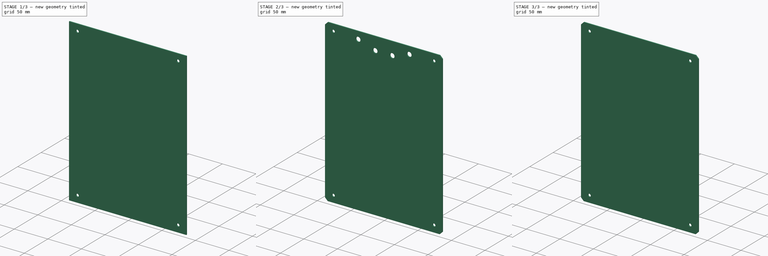
[diagram: build sequence overview — one tinted view per stage of 3, left to right]
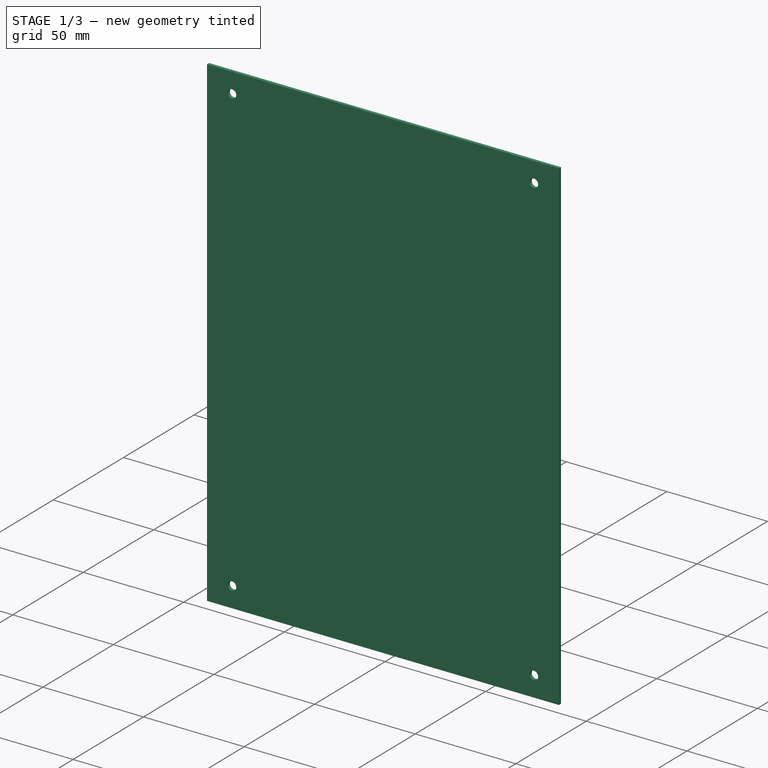
[diagram: stage 1 of 3 — iso view after this stage's code; geometry added in this stage tinted green]
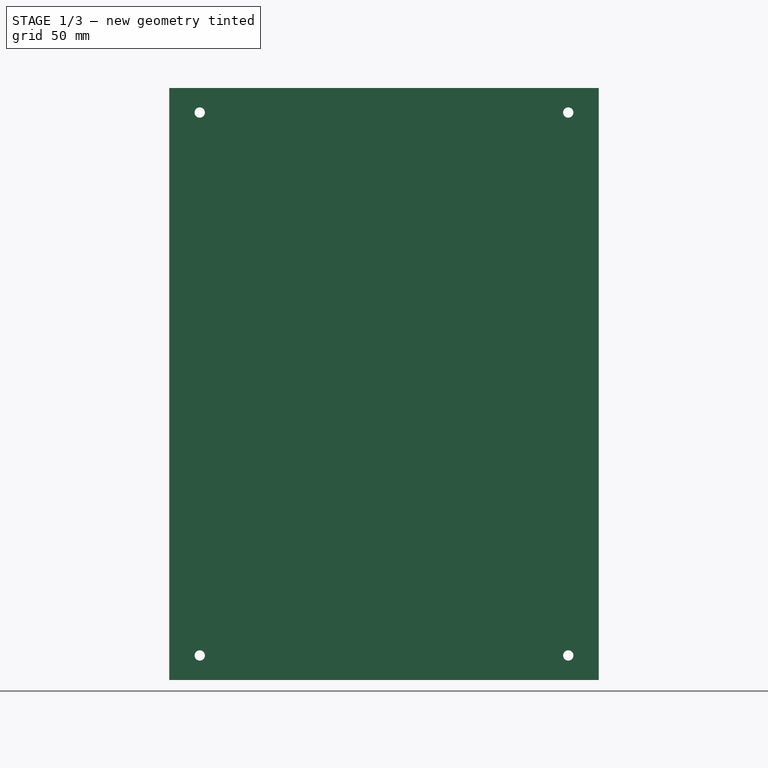
[diagram: stage 1 of 3 — front view after this stage's code; geometry added in this stage tinted green]
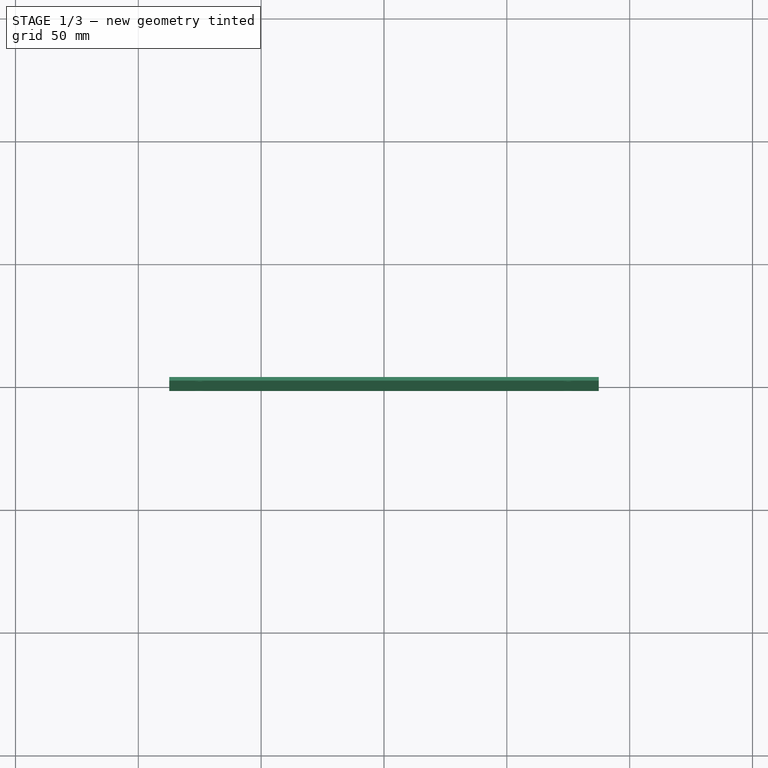
[diagram: stage 1 of 3 — top view after this stage's code; geometry added in this stage tinted green]
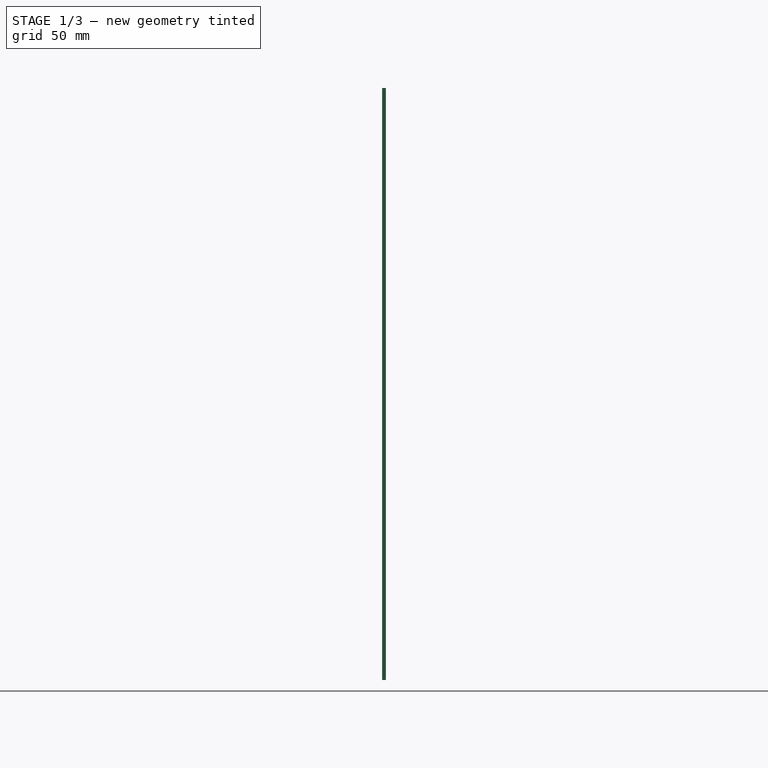
[diagram: stage 1 of 3 — right view after this stage's code; geometry added in this stage tinted green]
FCSTD DOCUMENT  (FreeCAD 1.0R39319 (Git))
Label: OCT-UFPNL
License: Creative Commons Attribution 4.0
LicenseURL: https://creativecommons.org/licenses/by/4.0/
objects: TechDraw::DrawViewDimension×32, Sketcher::SketchObject×4, PartDesign::Hole×3, PartDesign::Body×3, PartDesign::FeatureBase×2, TechDraw::DrawSVGTemplate×2, TechDraw::DrawProjGroupItem×2, TechDraw::DrawPage×2, PartDesign::Pad×1, PartDesign::Chamfer×1
note: 90 computed .brp shape members not serialized (recipe doc carries the construction recipe); baked Part::Feature solids carry a one-line shape summary decoded from their .brp

FEATURE [Sketcher::SketchObject] Sketch
  ArcFitTolerance = 1e-06
  AttachmentSupport = -> [XZ_Plane]
  FullyConstrained = true
  MakeInternals = false
  MapMode = 5
  Placement = pos=(0,0,0) rot=(1,0,0;1.5708rad)
  expr: Constraints[9] = 422 / (1 + sqrt(2))
  sketch-geometry (4):
    g0: LineSegment StartX=-87.3991 StartY=0 StartZ=0 EndX=87.3991 EndY=0 EndZ=0
    g1: LineSegment StartX=87.3991 StartY=0 StartZ=0 EndX=87.3991 EndY=241 EndZ=0
    g2: LineSegment StartX=87.3991 StartY=241 StartZ=0 EndX=-87.3991 EndY=241 EndZ=0
    g3: LineSegment StartX=-87.3991 StartY=241 StartZ=0 EndX=-87.3991 EndY=0 EndZ=0
  constraints (11):
    c: Coincident(g0,g1)
    c: Coincident(g1,g2)
    c: Coincident(g2,g3)
    c: Coincident(g3,g0)
    c: Horizontal(g2)
    c: Vertical(g1)
    c: Vertical(g3)
    c: PointOnObject(g0,g-1)
    c: DistanceY(g3,g3) = 241
    c: DistanceX(g0,g0) = 174.798
    c: Symmetric(g0,g0,g-2)
FEATURE [PartDesign::Pad] Pad
  Direction = (0,-1,2e-16)
  Length = 1.5
  Length2 = 10
  Placement = pos=(0,0,0) rot=(1,0,0;1.5708rad)
  Profile = -> Sketch
  ReferenceAxis = -> Sketch [N_Axis]
  Suppressed = false
  Type = 0
FEATURE [Sketcher::SketchObject] Sketch001
  ArcFitTolerance = 1e-06
  AttachmentSupport = -> [Pad]
  ExternalGeometry = -> [Pad]
  FullyConstrained = true
  MakeInternals = false
  MapMode = 5
  Placement = pos=(0,-1.5,0) rot=(1,0,0;1.5708rad)
  sketch-geometry (6):
    g0: Circle CenterX=-75 CenterY=231 CenterZ=0 NormalX=0 NormalY=0 NormalZ=1 AngleXU=0 Radius=2
    g1: Circle CenterX=75 CenterY=231 CenterZ=0 NormalX=0 NormalY=0 NormalZ=1 AngleXU=0 Radius=2
    g2: Circle CenterX=-75 CenterY=10 CenterZ=0 NormalX=0 NormalY=0 NormalZ=1 AngleXU=0 Radius=2
    g3: Circle CenterX=75 CenterY=10 CenterZ=0 NormalX=0 NormalY=0 NormalZ=1 AngleXU=0 Radius=2
    g4: LineSegment [constr] StartX=-75 StartY=10 StartZ=0 EndX=75 EndY=10 EndZ=0
    g5: LineSegment [constr] StartX=-75 StartY=231 StartZ=0 EndX=75 EndY=231 EndZ=0
  constraints (14):
    c: Coincident(g4,g2)
    c: Coincident(g4,g3)
    c: DistanceY(g-1,g2) = 10
    c: DistanceX(g4,g4) = 150
    c: Equal(g2,g3)
    c: Diameter(g2) = 4
    c: Symmetric(g2,g3,g-2)
    c: Coincident(g5,g0)
    c: Coincident(g5,g1)
    c: DistanceX(g5,g5) = 150
    c: Equal(g0,g1)
    c: Diameter(g0) = 4
    c: Symmetric(g0,g1,g-2)
    c: DistanceY(g1,g-3) = 10
FEATURE [PartDesign::Hole] Hole
  BaseFeature = -> Pad
  CustomThreadClearance = 0
  Depth = 601.402
  DepthType = 1
  Diameter = 4.2
  DrillForDepth = false
  DrillPoint = 1
  DrillPointAngle = 118
  HoleCutCountersinkAngle = 90
  HoleCutCustomValues = false
  HoleCutDepth = 0
  HoleCutDiameter = 6.1
  HoleCutType = 0
  ModelThread = false
  Placement = pos=(0,0,0) rot=(1,0,0;1.5708rad)
  Profile = -> Sketch001
  Suppressed = false
  Tapered = false
  TaperedAngle = 90
  ThreadClass = 0
  ThreadDepth = 601.402
  ThreadDepthType = 0
  ThreadDirection = 0
  ThreadFit = 0
  ThreadSize = 0
  ThreadType = 0
  Threaded = false
  UseCustomThreadClearance = false
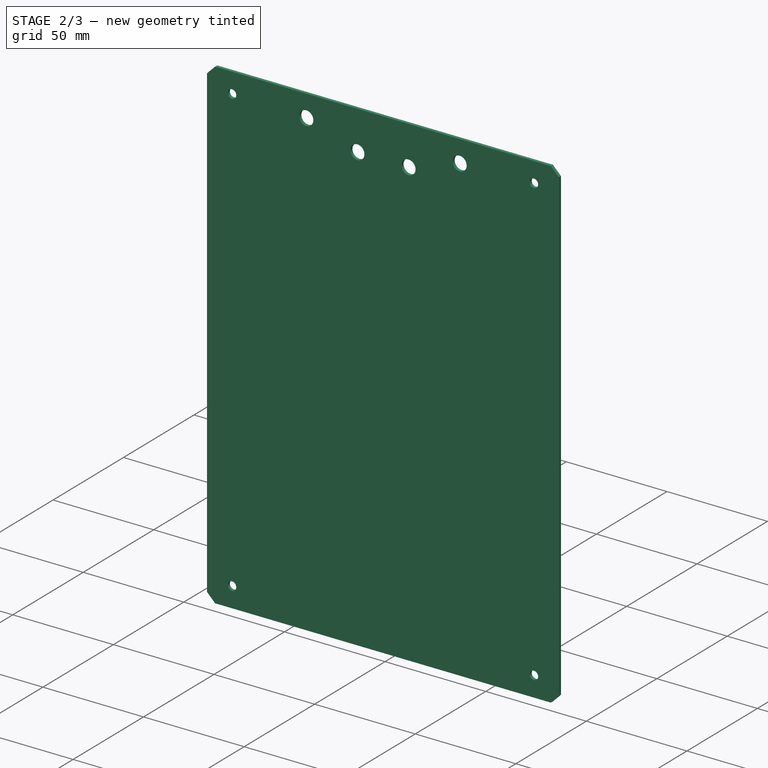
[diagram: stage 2 of 3 — iso view after this stage's code; geometry added in this stage tinted green]
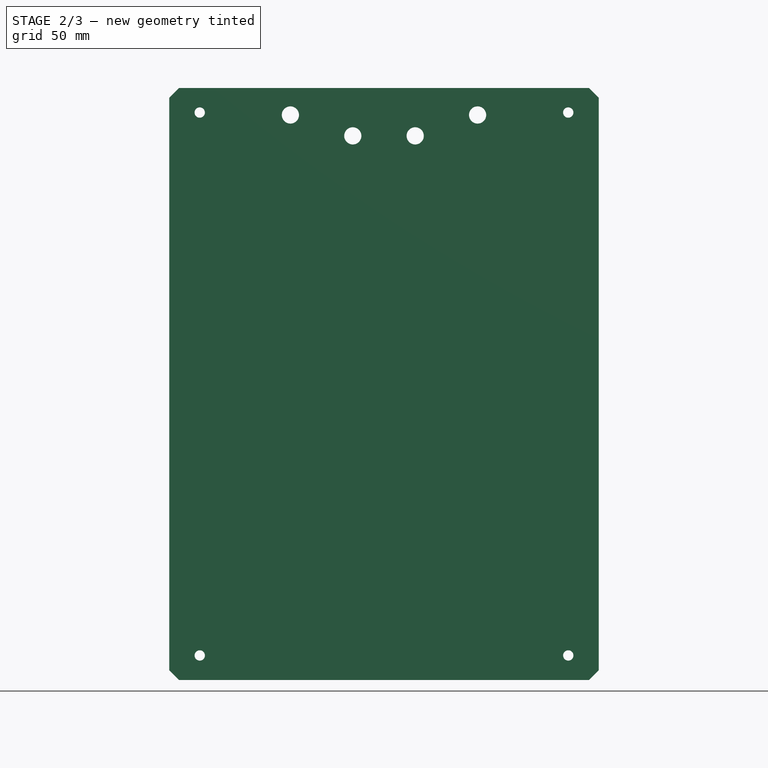
[diagram: stage 2 of 3 — front view after this stage's code; geometry added in this stage tinted green]
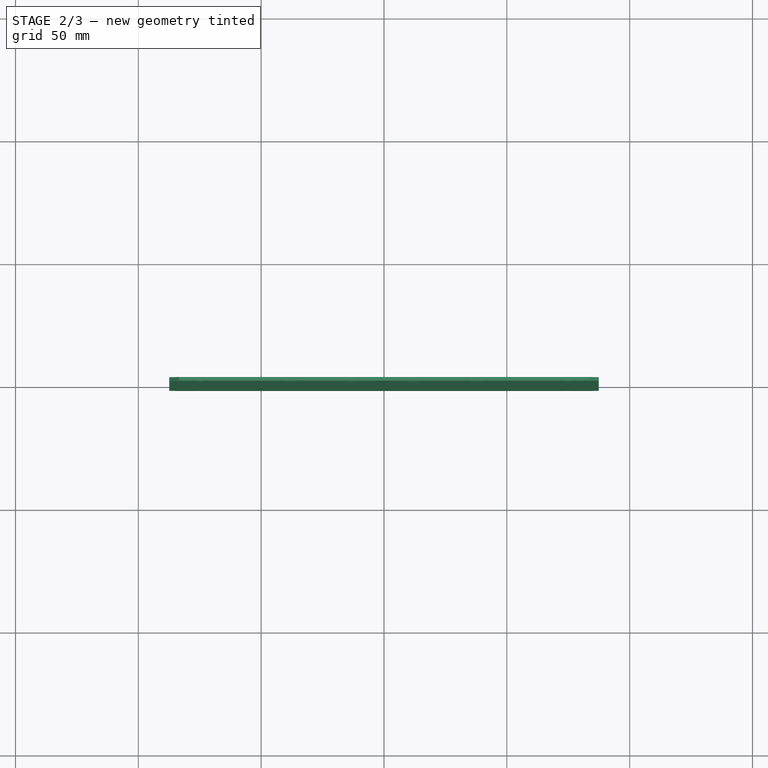
[diagram: stage 2 of 3 — top view after this stage's code; geometry added in this stage tinted green]
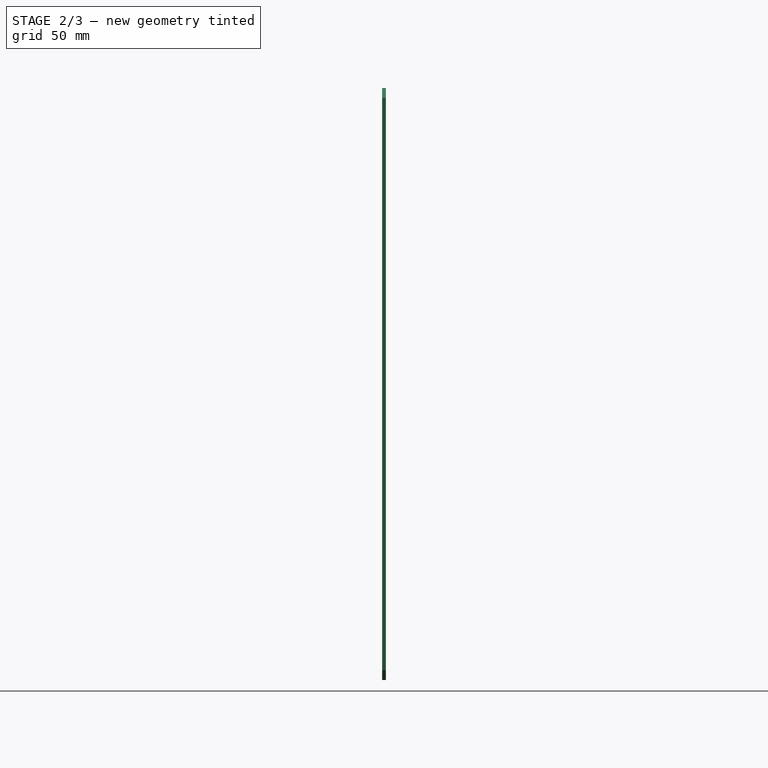
[diagram: stage 2 of 3 — right view after this stage's code; geometry added in this stage tinted green]
FEATURE [PartDesign::Chamfer] Chamfer
  Angle = 45
  Base = -> Hole [Edge2,Edge1,Edge5,Edge8]
  BaseFeature = -> Hole
  ChamferType = 0
  FlipDirection = false
  Placement = pos=(0,0,0) rot=(1,0,0;1.5708rad)
  Size = 4
  Size2 = 1
  SupportTransform = false
  Suppressed = false
  UseAllEdges = false
FEATURE [PartDesign::Body] Body  label="OCT-UFPNL-AB"
  AllowCompound = false
  Group = -> [Sketch,Pad,Sketch001,Hole,Chamfer]
  Origin = -> Origin
  Tip = -> Chamfer
FEATURE [PartDesign::FeatureBase] Clone
  BaseFeature = -> Body
  Suppressed = false
FEATURE [Sketcher::SketchObject] Sketch002
  ArcFitTolerance = 1e-06
  AttachmentSupport = -> [Clone]
  ExternalGeometry = -> [Clone]
  FullyConstrained = true
  MakeInternals = false
  MapMode = 5
  Placement = pos=(0,-1.5,0) rot=(1,0,0;1.5708rad)
  sketch-geometry (8):
    g0: Circle CenterX=-38.1 CenterY=230 CenterZ=0 NormalX=0 NormalY=0 NormalZ=1 AngleXU=0 Radius=3.5
    g1: Circle CenterX=-12.7 CenterY=221.5 CenterZ=0 NormalX=0 NormalY=0 NormalZ=1 AngleXU=0 Radius=3.5
    g2: Circle CenterX=12.7 CenterY=221.5 CenterZ=0 NormalX=0 NormalY=0 NormalZ=1 AngleXU=0 Radius=3.5
    g3: Circle CenterX=38.1 CenterY=230 CenterZ=0 NormalX=0 NormalY=0 NormalZ=1 AngleXU=0 Radius=3.5
    g4: LineSegment [constr] StartX=-38.1 StartY=230 StartZ=0 EndX=38.1 EndY=230 EndZ=0
    g5: LineSegment [constr] StartX=38.1 StartY=230 StartZ=0 EndX=12.7 EndY=221.5 EndZ=0
    g6: LineSegment [constr] StartX=12.7 StartY=221.5 StartZ=0 EndX=-12.7 EndY=221.5 EndZ=0
    g7: LineSegment [constr] StartX=-12.7 StartY=221.5 StartZ=0 EndX=-38.1 EndY=230 EndZ=0
  constraints (19):
    c: Equal(g0,g1)
    c: Equal(g1,g2)
    c: Equal(g2,g3)
    c: Coincident(g4,g0)
    c: Coincident(g4,g3)
    c: Coincident(g4,g5)
    c: Coincident(g5,g2)
    c: Coincident(g5,g6)
    c: Coincident(g6,g1)
    c: Coincident(g6,g7)
    c: Coincident(g7,g4)
    c: Horizontal(g6)
    c: Equal(g7,g5)
    c: Symmetric(g3,g0,g-2)
    c: DistanceX(g6,g6) = 25.4
    c: DistanceY(g2,g-3) = 19.5
    c: DistanceY(g7,g7) = 8.5
    c: DistanceX(g4,g4) = 76.2
    c: Diameter(g0) = 7
FEATURE [PartDesign::Hole] Hole001
  BaseFeature = -> Clone
  CustomThreadClearance = 0
  Depth = 25
  DepthType = 0
  Diameter = 7
  DrillForDepth = false
  DrillPoint = 1
  DrillPointAngle = 118
  HoleCutCountersinkAngle = 90
  HoleCutCustomValues = false
  HoleCutDepth = 0
  HoleCutDiameter = 0
  HoleCutType = 0
  ModelThread = false
  Profile = -> Sketch002
  Suppressed = false
  Tapered = false
  TaperedAngle = 90
  ThreadClass = 0
  ThreadDepth = 25
  ThreadDepthType = 0
  ThreadDirection = 0
  ThreadFit = 2
  ThreadSize = 14
  ThreadType = 1
  Threaded = false
  UseCustomThreadClearance = false
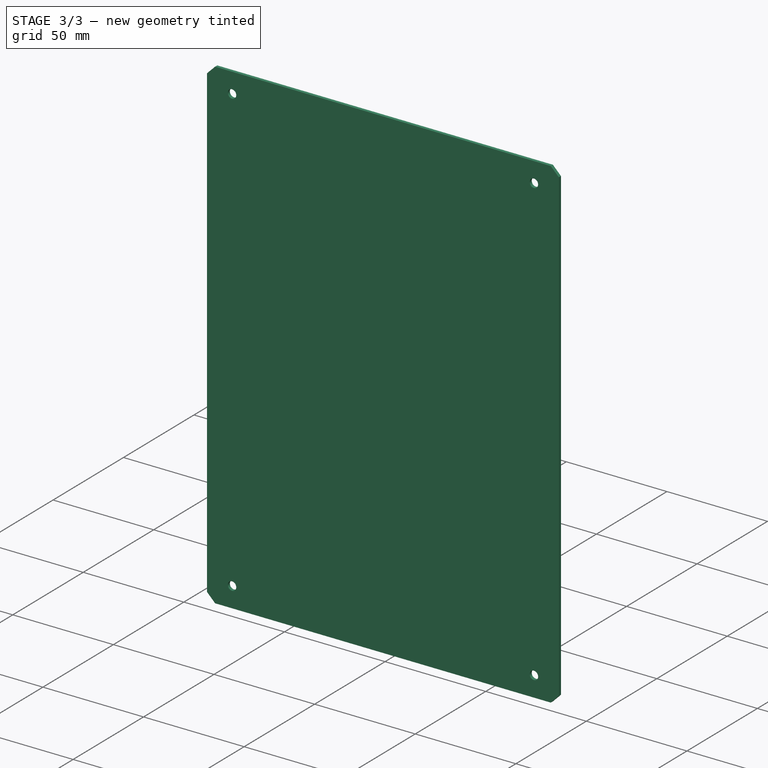
[diagram: stage 3 of 3 — iso view after this stage's code; geometry added in this stage tinted green]
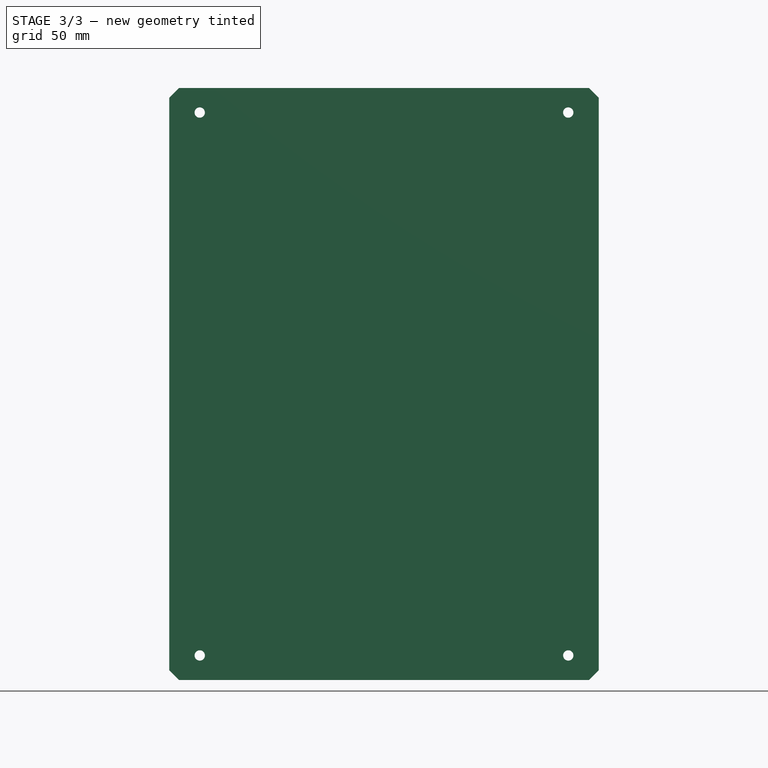
[diagram: stage 3 of 3 — front view after this stage's code; geometry added in this stage tinted green]
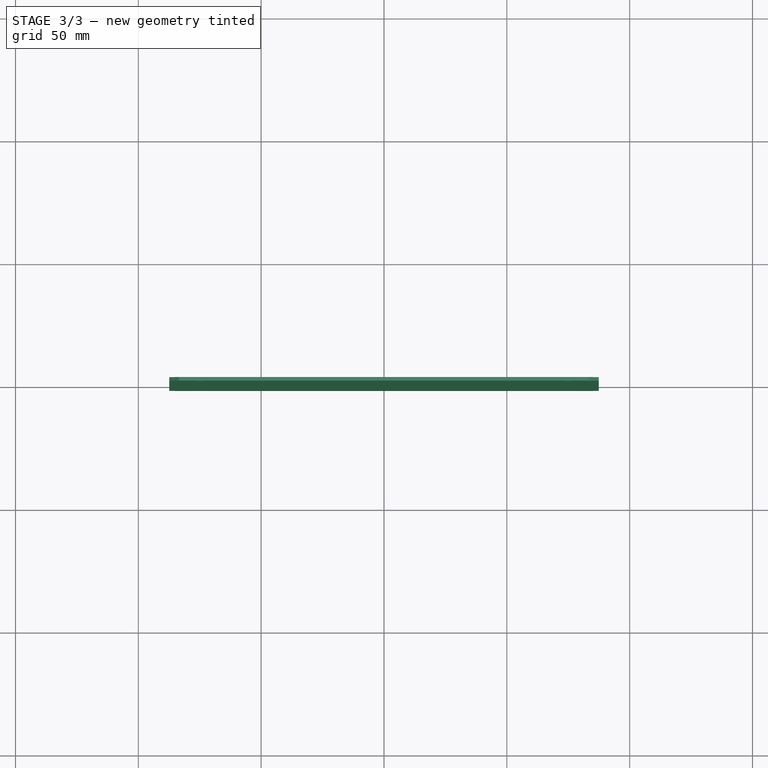
[diagram: stage 3 of 3 — top view after this stage's code; geometry added in this stage tinted green]
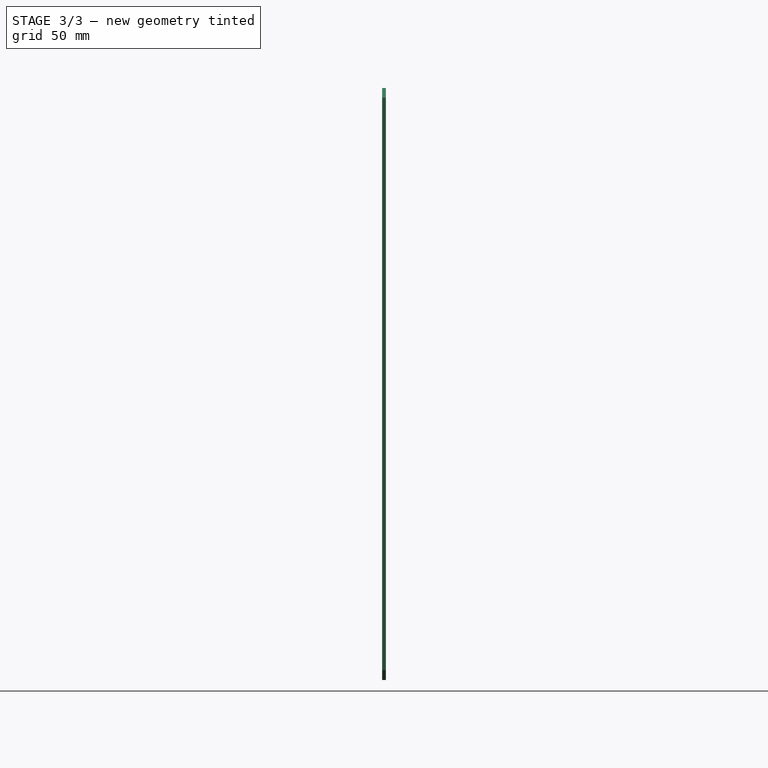
[diagram: stage 3 of 3 — right view after this stage's code; geometry added in this stage tinted green]
FEATURE [PartDesign::Body] Body001  label="OCT-UFPNL-BB"
  AllowCompound = false
  Group = -> [Clone,Sketch002,Hole001]
  Origin = -> Origin001
  Tip = -> Hole001
FEATURE [PartDesign::FeatureBase] Clone001
  BaseFeature = -> Body
  Suppressed = false
FEATURE [Sketcher::SketchObject] Sketch003
  ArcFitTolerance = 1e-06
  AttachmentSupport = -> [Clone001]
  FullyConstrained = true
  MakeInternals = false
  MapMode = 5
  Placement = pos=(0,-1.5,0) rot=(1,0,0;1.5708rad)
  sketch-geometry (6):
    g0: Circle CenterX=-41.3 CenterY=156.5 CenterZ=0 NormalX=0 NormalY=0 NormalZ=1 AngleXU=0 Radius=2.55
    g1: Circle CenterX=41.3 CenterY=156.5 CenterZ=0 NormalX=0 NormalY=0 NormalZ=1 AngleXU=0 Radius=2.55
    g2: Circle CenterX=-28.55 CenterY=120 CenterZ=0 NormalX=0 NormalY=0 NormalZ=1 AngleXU=0 Radius=2.55
    g3: Circle CenterX=28.55 CenterY=120 CenterZ=0 NormalX=0 NormalY=0 NormalZ=1 AngleXU=0 Radius=2.55
    g4: LineSegment [constr] StartX=-41.3 StartY=156.5 StartZ=0 EndX=41.3 EndY=156.5 EndZ=0
    g5: LineSegment [constr] StartX=-28.55 StartY=120 StartZ=0 EndX=28.55 EndY=120 EndZ=0
  constraints (14):
    c: Coincident(g4,g0)
    c: Coincident(g4,g1)
    c: Coincident(g5,g2)
    c: Coincident(g5,g3)
    c: Equal(g1,g3)
    c: Diameter(g3) = 5.1
    c: DistanceX(g5,g5) = 57.1
    c: DistanceY(g3,g1) = 36.5
    c: DistanceX(g4,g4) = 82.6
    c: Symmetric(g0,g1,g-2)
    c: Symmetric(g2,g3,g-2)
    c: Equal(g3,g2)
    c: Equal(g2,g0)
    c: DistanceY(g-1,g3) = 120
FEATURE [PartDesign::Hole] Hole002
  BaseFeature = -> Clone001
  CustomThreadClearance = 0
  Depth = 601.396
  DepthType = 1
  Diameter = 5.1
  DrillForDepth = false
  DrillPoint = 1
  DrillPointAngle = 118
  HoleCutCountersinkAngle = 90
  HoleCutCustomValues = false
  HoleCutDepth = 0
  HoleCutDiameter = 6.1
  HoleCutType = 0
  ModelThread = false
  Profile = -> Sketch003
  Suppressed = false
  Tapered = false
  TaperedAngle = 90
  ThreadClass = 0
  ThreadDepth = 601.396
  ThreadDepthType = 0
  ThreadDirection = 0
  ThreadFit = 0
  ThreadSize = 0
  ThreadType = 0
  Threaded = false
  UseCustomThreadClearance = false
FEATURE [PartDesign::Body] Body002  label="OCT-UFPNL-CB"
  AllowCompound = false
  Group = -> [Clone001,Sketch003,Hole002]
  Origin = -> Origin002
  Tip = -> Hole002
FEATURE [TechDraw::DrawSVGTemplate] Template
  EditableTexts = approval_person=S. Aphelion; creator=Michael Stoll; date_of_issue=13/02/2026; document_status=In preparation; document_type=Component Drawing; drawing_number=DN; general_tolerances=ISO 2768-m; language_code=EN; part_material=Mild Steel, S275; responsible_department=RD; revision_index=A; scale=1 : 1.25; sheet_number=1 / 1; supplementary_title_1=Upper Frame Panel, Hinge; title=OCT-UFPNL-BB
  Height = 297
  Orientation = 1
  Template = C:/Program Files/FreeCAD 1.0/data/Mod/TechDraw/Templates/A3_Landscape_ISO5457_advanced.svg
  Width = 420
FEATURE [TechDraw::DrawProjGroupItem] View
  CoarseView = false
  Direction = (0,-1,0)
  Focus = 100
  HardHidden = false
  IsoCount = 0
  IsoHidden = false
  IsoVisible = false
  LockPosition = false
  Perspective = false
  Rotation = 0
  RotationVector = (1,0,0)
  Scale = 0.8
  ScaleType = 0
  ScrubCount = 1
  SeamHidden = false
  SeamVisible = false
  SmoothHidden = false
  SmoothVisible = true
  Source = -> [Body001]
  Type = 0
  X = 113.341
  XDirection = (1,0,0)
  Y = 150.735
FEATURE [TechDraw::DrawViewDimension] Dimension
  AngleOverride = false
  Arbitrary = false
  ArbitraryTolerances = false
  BoxCorners = (2) [(-69.9192,-96.4,0),(69.9192,96.4,0)]
  EqualTolerance = true
  ExtensionAngle = 0
  FormatSpec = %.1f
  FormatSpecOverTolerance = %+.1f
  FormatSpecUnderTolerance = %+.1f
  Inverted = false
  LineAngle = 0
  LockPosition = false
  MeasureType = 1
  OverTolerance = 0
  References2D = -> [View]
  Rotation = 0
  Scale = 0.8
  ScaleType = 0
  TheoreticalExact = false
  Type = 1
  UnderTolerance = 0
  X = 0
  Y = -124.151
FEATURE [TechDraw::DrawViewDimension] Dimension001
  AngleOverride = false
  Arbitrary = false
  ArbitraryTolerances = false
  BoxCorners = (2) [(-69.9192,-96.4,0),(69.9192,96.4,0)]
  EqualTolerance = true
  ExtensionAngle = 0
  FormatSpec = %.1f
  FormatSpecOverTolerance = %+.1f
  FormatSpecUnderTolerance = %+.1f
  Inverted = false
  LineAngle = 0
  LockPosition = false
  MeasureType = 1
  OverTolerance = 0
  References2D = -> [View]
  Rotation = 0
  Scale = 0.8
  ScaleType = 0
  TheoreticalExact = false
  Type = 2
  UnderTolerance = 0
  X = 92.0289
  Y = 0
FEATURE [TechDraw::DrawViewDimension] Dimension003
  AngleOverride = false
  Arbitrary = false
  ArbitraryTolerances = false
  BoxCorners = (2) [(-69.9192,-96.4,0),(69.9192,96.4,0)]
  EqualTolerance = true
  ExtensionAngle = 0
  FormatSpec = %.1f
  FormatSpecOverTolerance = %+.1f
  FormatSpecUnderTolerance = %+.1f
  Inverted = false
  LineAngle = 0
  LockPosition = false
  MeasureType = 1
  OverTolerance = 0
  References2D = -> [View]
  Rotation = 0
  Scale = 0.8
  ScaleType = 0
  TheoreticalExact = false
  Type = 1
  UnderTolerance = 0
  X = 0
  Y = -110.696
FEATURE [TechDraw::DrawViewDimension] Dimension005
  AngleOverride = false
  Arbitrary = false
  ArbitraryTolerances = false
  BoxCorners = (2) [(-69.9192,-96.4,0),(69.9192,96.4,0)]
  EqualTolerance = true
  ExtensionAngle = 0
  FormatSpec = %.1f
  FormatSpecOverTolerance = %+.1f
  FormatSpecUnderTolerance = %+.1f
  Inverted = false
  LineAngle = 0
  LockPosition = false
  MeasureType = 1
  OverTolerance = 0
  References2D = -> [View]
  Rotation = 0
  Scale = 0.8
  ScaleType = 0
  TheoreticalExact = false
  Type = 1
  UnderTolerance = 0
  X = 0
  Y = 124.736
FEATURE [TechDraw::DrawViewDimension] Dimension006
  AngleOverride = false
  Arbitrary = false
  ArbitraryTolerances = false
  BoxCorners = (2) [(-69.9192,-96.4,0),(69.9192,96.4,0)]
  EqualTolerance = true
  ExtensionAngle = 0
  FormatSpec = %.1f
  FormatSpecOverTolerance = %+.1f
  FormatSpecUnderTolerance = %+.1f
  Inverted = false
  LineAngle = 0
  LockPosition = false
  MeasureType = 1
  OverTolerance = 0
  References2D = -> [View]
  Rotation = 0
  Scale = 0.8
  ScaleType = 0
  TheoreticalExact = false
  Type = 0
  UnderTolerance = 0
  X = -64.9596
  Y = 124.736
FEATURE [TechDraw::DrawViewDimension] Dimension007
  AngleOverride = false
  Arbitrary = false
  ArbitraryTolerances = false
  BoxCorners = (2) [(-69.9192,-96.4,0),(69.9192,96.4,0)]
  EqualTolerance = true
  ExtensionAngle = 0
  FormatSpec = %.1f
  FormatSpecOverTolerance = %+.1f
  FormatSpecUnderTolerance = %+.1f
  Inverted = false
  LineAngle = 0
  LockPosition = false
  MeasureType = 1
  OverTolerance = 0
  References2D = -> [View]
  Rotation = 0
  Scale = 0.8
  ScaleType = 0
  TheoreticalExact = false
  Type = 0
  UnderTolerance = 0
  X = -64.9596
  Y = -110.696
FEATURE [TechDraw::DrawViewDimension] Dimension010
  AngleOverride = false
  Arbitrary = false
  ArbitraryTolerances = false
  BoxCorners = (2) [(-69.9192,-96.4,0),(69.9192,96.4,0)]
  EqualTolerance = true
  ExtensionAngle = 0
  FormatSpec = %.1f
  FormatSpecOverTolerance = %+.1f
  FormatSpecUnderTolerance = %+.1f
  Inverted = false
  LineAngle = 0
  LockPosition = false
  MeasureType = 1
  OverTolerance = 0
  References2D = -> [View]
  Rotation = 0
  Scale = 0.8
  ScaleType = 0
  TheoreticalExact = false
  Type = 2
  UnderTolerance = 0
  X = 77.1345
  Y = 0
FEATURE [TechDraw::DrawViewDimension] Dimension013
  AngleOverride = false
  Arbitrary = false
  ArbitraryTolerances = false
  BoxCorners = (2) [(-69.9192,-96.4,0),(69.9192,96.4,0)]
  EqualTolerance = true
  ExtensionAngle = 0
  FormatSpec = %.1f
  FormatSpecOverTolerance = %+.1f
  FormatSpecUnderTolerance = %+.1f
  Inverted = false
  LineAngle = 0
  LockPosition = false
  MeasureType = 1
  OverTolerance = 0
  References2D = -> [View]
  Rotation = 0
  Scale = 0.8
  ScaleType = 0
  TheoreticalExact = false
  Type = 1
  UnderTolerance = 0
  X = 0
  Y = 110.945
FEATURE [TechDraw::DrawViewDimension] Dimension014
  AngleOverride = false
  Arbitrary = false
  ArbitraryTolerances = false
  BoxCorners = (2) [(-69.9192,-96.4,0),(69.9192,96.4,0)]
  EqualTolerance = true
  ExtensionAngle = 0
  FormatSpec = %.1f
  FormatSpecOverTolerance = %+.1f
  FormatSpecUnderTolerance = %+.1f
  Inverted = false
  LineAngle = 0
  LockPosition = false
  MeasureType = 1
  OverTolerance = 0
  References2D = -> [View]
  Rotation = 0
  Scale = 0.8
  ScaleType = 0
  TheoreticalExact = false
  Type = 2
  UnderTolerance = 0
  X = -89.172
  Y = 84.2
FEATURE [TechDraw::DrawViewDimension] Dimension015
  AngleOverride = false
  Arbitrary = false
  ArbitraryTolerances = false
  BoxCorners = (2) [(-69.9192,-96.4,0),(69.9192,96.4,0)]
  EqualTolerance = true
  ExtensionAngle = 0
  FormatSpec = %.1f
  FormatSpecOverTolerance = %+.1f
  FormatSpecUnderTolerance = %+.1f
  Inverted = false
  LineAngle = 0
  LockPosition = false
  MeasureType = 1
  OverTolerance = 0
  References2D = -> [View]
  Rotation = 0
  Scale = 0.8
  ScaleType = 0
  TheoreticalExact = false
  Type = 1
  UnderTolerance = 0
  X = -45.24
  Y = 110.945
FEATURE [TechDraw::DrawViewDimension] Dimension016
  AngleOverride = false
  Arbitrary = false
  ArbitraryTolerances = false
  BoxCorners = (2) [(-69.9192,-96.4,0),(69.9192,96.4,0)]
  EqualTolerance = true
  ExtensionAngle = 0
  FormatSpec = %.1f
  FormatSpecOverTolerance = %+.1f
  FormatSpecUnderTolerance = %+.1f
  Inverted = false
  LineAngle = 0
  LockPosition = false
  MeasureType = 1
  OverTolerance = 0
  References2D = -> [View]
  Rotation = 0
  Scale = 0.8
  ScaleType = 0
  TheoreticalExact = false
  Type = 0
  UnderTolerance = 0
  X = 123.017
  Y = 112.248
FEATURE [TechDraw::DrawViewDimension] Dimension017
  AngleOverride = false
  Arbitrary = false
  ArbitraryTolerances = false
  BoxCorners = (2) [(-69.9192,-96.4,0),(69.9192,96.4,0)]
  EqualTolerance = true
  ExtensionAngle = 0
  FormatSpec = %.1f
  FormatSpecOverTolerance = %+.1f
  FormatSpecUnderTolerance = %+.1f
  Inverted = false
  LineAngle = 0
  LockPosition = false
  MeasureType = 1
  OverTolerance = 0
  References2D = -> [View]
  Rotation = 0
  Scale = 0.8
  ScaleType = 0
  TheoreticalExact = false
  Type = 0
  UnderTolerance = 0
  X = -89.172
  Y = -92.4
FEATURE [TechDraw::DrawViewDimension] Dimension018
  AngleOverride = false
  Arbitrary = false
  ArbitraryTolerances = false
  BoxCorners = (2) [(-69.9192,-96.4,0),(69.9192,96.4,0)]
  EqualTolerance = true
  ExtensionAngle = 0
  FormatSpec = %.1f
  FormatSpecOverTolerance = %+.1f
  FormatSpecUnderTolerance = %+.1f
  Inverted = false
  LineAngle = 0
  LockPosition = false
  MeasureType = 1
  OverTolerance = 0
  References2D = -> [View]
  Rotation = 0
  Scale = 0.8
  ScaleType = 0
  TheoreticalExact = false
  Type = 1
  UnderTolerance = 0
  X = -20.32
  Y = 110.945
FEATURE [TechDraw::DrawViewDimension] Dimension019
  AngleOverride = false
  Arbitrary = false
  ArbitraryTolerances = false
  BoxCorners = (2) [(-69.9192,-96.4,0),(69.9192,96.4,0)]
  EqualTolerance = true
  ExtensionAngle = 0
  FormatSpec = %.1f
  FormatSpecOverTolerance = %+.1f
  FormatSpecUnderTolerance = %+.1f
  Inverted = false
  LineAngle = 0
  LockPosition = false
  MeasureType = 1
  OverTolerance = 0
  References2D = -> [View]
  Rotation = 0
  Scale = 0.8
  ScaleType = 0
  TheoreticalExact = false
  Type = 1
  UnderTolerance = 0
  X = 20.32
  Y = 110.945
FEATURE [TechDraw::DrawViewDimension] Dimension020
  AngleOverride = false
  Arbitrary = false
  ArbitraryTolerances = false
  BoxCorners = (2) [(-69.9192,-96.4,0),(69.9192,96.4,0)]
  EqualTolerance = true
  ExtensionAngle = 0
  FormatSpec = %.1f x45°
  FormatSpecOverTolerance = %+.1f
  FormatSpecUnderTolerance = %+.1f
  Inverted = false
  LineAngle = 0
  LockPosition = false
  MeasureType = 1
  OverTolerance = 0
  References2D = -> [View]
  Rotation = 0
  Scale = 0.8
  ScaleType = 0
  TheoreticalExact = false
  Type = 1
  UnderTolerance = 0
  X = 68.3192
  Y = 131.736
FEATURE [TechDraw::DrawSVGTemplate] Template001
  EditableTexts = approval_person=S. Aphelion; creator=Michael Stoll; date_of_issue=13/02/2026; document_status=In preparation; document_type=Component Drawing; drawing_number=DN; general_tolerances=ISO 2768-m; language_code=EN; part_material=Mild Steel, S275; responsible_department=RD; revision_index=A; scale=1 : 1.25; sheet_number=2 / 2; supplementary_title_1=Upper Panel, Handle; title=OCT-UFPNL-CB
  Height = 297
  Orientation = 1
  Template = C:/Program Files/FreeCAD 1.0/data/Mod/TechDraw/Templates/A3_Landscape_ISO5457_advanced.svg
  Width = 420
FEATURE [TechDraw::DrawProjGroupItem] View001
  CoarseView = false
  Direction = (0,-1,0)
  Focus = 100
  HardHidden = false
  IsoCount = 0
  IsoHidden = false
  IsoVisible = false
  LockPosition = false
  Perspective = false
  Rotation = 0
  RotationVector = (1,0,0)
  Scale = 0.8
  ScaleType = 0
  ScrubCount = 1
  SeamHidden = false
  SeamVisible = false
  SmoothHidden = false
  SmoothVisible = true
  Source = -> [Hole002]
  Type = 0
  X = 115.305
  XDirection = (1,0,0)
  Y = 151.643
FEATURE [TechDraw::DrawViewDimension] Dimension021
  AngleOverride = false
  Arbitrary = false
  ArbitraryTolerances = false
  BoxCorners = (2) [(-69.9192,-96.4,0),(69.9192,96.4,0)]
  EqualTolerance = true
  ExtensionAngle = 0
  FormatSpec = %.1f
  FormatSpecOverTolerance = %+.1f
  FormatSpecUnderTolerance = %+.1f
  Inverted = false
  LineAngle = 0
  LockPosition = false
  MeasureType = 1
  OverTolerance = 0
  References2D = -> [View001]
  Rotation = 0
  Scale = 0.8
  ScaleType = 0
  TheoreticalExact = false
  Type = 1
  UnderTolerance = 0
  X = 0
  Y = -116.473
FEATURE [TechDraw::DrawViewDimension] Dimension022
  AngleOverride = false
  Arbitrary = false
  ArbitraryTolerances = false
  BoxCorners = (2) [(-69.9192,-96.4,0),(69.9192,96.4,0)]
  EqualTolerance = true
  ExtensionAngle = 0
  FormatSpec = %.1f
  FormatSpecOverTolerance = %+.1f
  FormatSpecUnderTolerance = %+.1f
  Inverted = false
  LineAngle = 0
  LockPosition = false
  MeasureType = 1
  OverTolerance = 0
  References2D = -> [View001]
  Rotation = 0
  Scale = 0.8
  ScaleType = 0
  TheoreticalExact = false
  Type = 1
  UnderTolerance = 0
  X = 0
  Y = -105.802
FEATURE [TechDraw::DrawViewDimension] Dimension023
  AngleOverride = false
  Arbitrary = false
  ArbitraryTolerances = false
  BoxCorners = (2) [(-69.9192,-96.4,0),(69.9192,96.4,0)]
  EqualTolerance = true
  ExtensionAngle = 0
  FormatSpec = %.1f
  FormatSpecOverTolerance = %+.1f
  FormatSpecUnderTolerance = %+.1f
  Inverted = false
  LineAngle = 0
  LockPosition = false
  MeasureType = 1
  OverTolerance = 0
  References2D = -> [View001]
  Rotation = 0
  Scale = 0.8
  ScaleType = 0
  TheoreticalExact = false
  Type = 1
  UnderTolerance = 0
  X = -64.9596
  Y = -105.802
FEATURE [TechDraw::DrawViewDimension] Dimension024
  AngleOverride = false
  Arbitrary = false
  ArbitraryTolerances = false
  BoxCorners = (2) [(-69.9192,-96.4,0),(69.9192,96.4,0)]
  EqualTolerance = true
  ExtensionAngle = 0
  FormatSpec = %.1f
  FormatSpecOverTolerance = %+.1f
  FormatSpecUnderTolerance = %+.1f
  Inverted = false
  LineAngle = 0
  LockPosition = false
  MeasureType = 1
  OverTolerance = 0
  References2D = -> [View001]
  Rotation = 0
  Scale = 0.8
  ScaleType = 0
  TheoreticalExact = false
  Type = 0
  UnderTolerance = 0
  X = -88.8745
  Y = -92.4
FEATURE [TechDraw::DrawViewDimension] Dimension025
  AngleOverride = false
  Arbitrary = false
  ArbitraryTolerances = false
  BoxCorners = (2) [(-69.9192,-96.4,0),(69.9192,96.4,0)]
  EqualTolerance = true
  ExtensionAngle = 0
  FormatSpec = %.1f
  FormatSpecOverTolerance = %+.1f
  FormatSpecUnderTolerance = %+.1f
  Inverted = false
  LineAngle = 0
  LockPosition = false
  MeasureType = 1
  OverTolerance = 0
  References2D = -> [View001]
  Rotation = 0
  Scale = 0.8
  ScaleType = 0
  TheoreticalExact = false
  Type = 0
  UnderTolerance = 0
  X = 82.1882
  Y = -48.4
FEATURE [TechDraw::DrawViewDimension] Dimension027
  AngleOverride = false
  Arbitrary = false
  ArbitraryTolerances = false
  BoxCorners = (2) [(-69.9192,-96.4,0),(69.9192,96.4,0)]
  EqualTolerance = true
  ExtensionAngle = 0
  FormatSpec = %.1f
  FormatSpecOverTolerance = %+.1f
  FormatSpecUnderTolerance = %+.1f
  Inverted = false
  LineAngle = 0
  LockPosition = false
  MeasureType = 1
  OverTolerance = 0
  References2D = -> [View001]
  Rotation = 0
  Scale = 0.8
  ScaleType = 0
  TheoreticalExact = false
  Type = 0
  UnderTolerance = 0
  X = -78.1414
  Y = 81.023
FEATURE [TechDraw::DrawViewDimension] Dimension029
  AngleOverride = false
  Arbitrary = false
  ArbitraryTolerances = false
  BoxCorners = (2) [(-69.9192,-96.4,0),(69.9192,96.4,0)]
  EqualTolerance = true
  ExtensionAngle = 0
  FormatSpec = %.1f
  FormatSpecOverTolerance = %+.1f
  FormatSpecUnderTolerance = %+.1f
  Inverted = false
  LineAngle = 0
  LockPosition = false
  MeasureType = 1
  OverTolerance = 0
  References2D = -> [View001]
  Rotation = 0
  Scale = 0.8
  ScaleType = 0
  TheoreticalExact = false
  Type = 0
  UnderTolerance = 0
  X = -80.3511
  Y = 115.505
FEATURE [TechDraw::DrawViewDimension] Dimension034
  AngleOverride = false
  Arbitrary = false
  ArbitraryTolerances = false
  BoxCorners = (2) [(-69.9192,-96.4,0),(69.9192,96.4,0)]
  EqualTolerance = true
  ExtensionAngle = 0
  FormatSpec = %.1f x45°
  FormatSpecOverTolerance = %+.1f
  FormatSpecUnderTolerance = %+.1f
  Inverted = false
  LineAngle = 0
  LockPosition = false
  MeasureType = 1
  OverTolerance = 0
  References2D = -> [View001]
  Rotation = 0
  Scale = 0.8
  ScaleType = 0
  TheoreticalExact = false
  Type = 1
  UnderTolerance = 0
  X = 85.673
  Y = 115.505
FEATURE [TechDraw::DrawViewDimension] Dimension035
  AngleOverride = false
  Arbitrary = false
  ArbitraryTolerances = false
  BoxCorners = (2) [(-69.9192,-96.4,0),(69.9192,96.4,0)]
  EqualTolerance = true
  ExtensionAngle = 0
  FormatSpec = %.1f
  FormatSpecOverTolerance = %+.1f
  FormatSpecUnderTolerance = %+.1f
  Inverted = false
  LineAngle = 0
  LockPosition = false
  MeasureType = 1
  OverTolerance = 0
  References2D = -> [View001]
  Rotation = 0
  Scale = 0.8
  ScaleType = 0
  TheoreticalExact = false
  Type = 2
  UnderTolerance = 0
  X = 82.1882
  Y = 14.2
FEATURE [TechDraw::DrawViewDimension] Dimension036
  AngleOverride = false
  Arbitrary = false
  ArbitraryTolerances = false
  BoxCorners = (2) [(-69.9192,-96.4,0),(69.9192,96.4,0)]
  EqualTolerance = true
  ExtensionAngle = 0
  FormatSpec = %.1f
  FormatSpecOverTolerance = %+.1f
  FormatSpecUnderTolerance = %+.1f
  Inverted = false
  LineAngle = 0
  LockPosition = false
  MeasureType = 1
  OverTolerance = 0
  References2D = -> [View001]
  Rotation = 0
  Scale = 0.8
  ScaleType = 0
  TheoreticalExact = false
  Type = 0
  UnderTolerance = 0
  X = -51.4796
  Y = 132.42
FEATURE [TechDraw::DrawViewDimension] Dimension037
  AngleOverride = false
  Arbitrary = false
  ArbitraryTolerances = false
  BoxCorners = (2) [(-69.9192,-96.4,0),(69.9192,96.4,0)]
  EqualTolerance = true
  ExtensionAngle = 0
  FormatSpec = %.1f
  FormatSpecOverTolerance = %+.1f
  FormatSpecUnderTolerance = %+.1f
  Inverted = false
  LineAngle = 0
  LockPosition = false
  MeasureType = 1
  OverTolerance = 0
  References2D = -> [View001]
  Rotation = 0
  Scale = 0.8
  ScaleType = 0
  TheoreticalExact = false
  Type = 1
  UnderTolerance = 0
  X = 0
  Y = 132.42
FEATURE [TechDraw::DrawViewDimension] Dimension038
  AngleOverride = false
  Arbitrary = false
  ArbitraryTolerances = false
  BoxCorners = (2) [(-69.9192,-96.4,0),(69.9192,96.4,0)]
  EqualTolerance = true
  ExtensionAngle = 0
  FormatSpec = %.1f
  FormatSpecOverTolerance = %+.1f
  FormatSpecUnderTolerance = %+.1f
  Inverted = false
  LineAngle = 0
  LockPosition = false
  MeasureType = 1
  OverTolerance = 0
  References2D = -> [View001]
  Rotation = 0
  Scale = 0.8
  ScaleType = 0
  TheoreticalExact = false
  Type = 1
  UnderTolerance = 0
  X = 0
  Y = 120.937
FEATURE [TechDraw::DrawViewDimension] Dimension039
  AngleOverride = false
  Arbitrary = false
  ArbitraryTolerances = false
  BoxCorners = (2) [(-69.9192,-96.4,0),(69.9192,96.4,0)]
  EqualTolerance = true
  ExtensionAngle = 0
  FormatSpec = %.1f
  FormatSpecOverTolerance = %+.1f
  FormatSpecUnderTolerance = %+.1f
  Inverted = false
  LineAngle = 0
  LockPosition = false
  MeasureType = 1
  OverTolerance = 0
  References2D = -> [View001]
  Rotation = 0
  Scale = 0.8
  ScaleType = 0
  TheoreticalExact = false
  Type = 0
  UnderTolerance = 0
  X = -46.3796
  Y = 120.937
FEATURE [TechDraw::DrawViewDimension] Dimension040
  AngleOverride = false
  Arbitrary = false
  ArbitraryTolerances = false
  BoxCorners = (2) [(-69.9192,-96.4,0),(69.9192,96.4,0)]
  EqualTolerance = true
  ExtensionAngle = 0
  FormatSpec = ⌀%.1f
  FormatSpecOverTolerance = %+.1f
  FormatSpecUnderTolerance = %+.1f
  Inverted = false
  LineAngle = 0
  LockPosition = false
  MeasureType = 1
  OverTolerance = 0
  References2D = -> [View001]
  Rotation = 0
  Scale = 0.8
  ScaleType = 0
  TheoreticalExact = false
  Type = 5
  UnderTolerance = 0
  X = 97.6487
  Y = 64.9902
FEATURE [TechDraw::DrawViewDimension] Dimension041
  AngleOverride = false
  Arbitrary = false
  ArbitraryTolerances = false
  BoxCorners = (2) [(-69.9192,-96.4,0),(69.9192,96.4,0)]
  EqualTolerance = true
  ExtensionAngle = 0
  FormatSpec = ⌀%.1f
  FormatSpecOverTolerance = %+.1f
  FormatSpecUnderTolerance = %+.1f
  Inverted = false
  LineAngle = 0
  LockPosition = false
  MeasureType = 1
  OverTolerance = 0
  References2D = -> [View001]
  Rotation = 0
  Scale = 0.8
  ScaleType = 0
  TheoreticalExact = false
  Type = 5
  UnderTolerance = 0
  X = 93.3083
  Y = 98.9631
FEATURE [TechDraw::DrawPage] Page001  label="CB"
  KeepUpdated = true
  NextBalloonIndex = 1
  ProjectionType = 1
  Scale = 0.8
  Template = -> Template001
  Views = -> [View001,Dimension021,Dimension022,Dimension023,Dimension024,Dimension025,Dimension027,Dimension029,Dimension034,Dimension035,Dimension036,Dimension037,Dimension038,Dimension039,Dimension040,Dimension041]
FEATURE [TechDraw::DrawViewDimension] Dimension042
  AngleOverride = false
  Arbitrary = false
  ArbitraryTolerances = false
  BoxCorners = (2) [(-69.9192,-96.4,0),(69.9192,96.4,0)]
  EqualTolerance = true
  ExtensionAngle = 0
  FormatSpec = ⌀%.1f
  FormatSpecOverTolerance = %+.1f
  FormatSpecUnderTolerance = %+.1f
  Inverted = false
  LineAngle = 0
  LockPosition = false
  MeasureType = 1
  OverTolerance = 0
  References2D = -> [View]
  Rotation = 0
  Scale = 0.8
  ScaleType = 0
  TheoreticalExact = false
  Type = 5
  UnderTolerance = 0
  X = 95.7771
  Y = -104.177
FEATURE [TechDraw::DrawViewDimension] Dimension043
  AngleOverride = false
  Arbitrary = false
  ArbitraryTolerances = false
  BoxCorners = (2) [(-69.9192,-96.4,0),(69.9192,96.4,0)]
  EqualTolerance = true
  ExtensionAngle = 0
  FormatSpec = ⌀%.1f
  FormatSpecOverTolerance = %+.1f
  FormatSpecUnderTolerance = %+.1f
  Inverted = false
  LineAngle = 0
  LockPosition = false
  MeasureType = 1
  OverTolerance = 0
  References2D = -> [View]
  Rotation = 0
  Scale = 0.8
  ScaleType = 0
  TheoreticalExact = false
  Type = 5
  UnderTolerance = 0
  X = 46.0055
  Y = 112.183
FEATURE [TechDraw::DrawPage] Page  label="BB"
  KeepUpdated = true
  NextBalloonIndex = 1
  ProjectionType = 1
  Scale = 0.8
  Template = -> Template
  Views = -> [View,Dimension,Dimension001,Dimension003,Dimension005,Dimension006,Dimension007,Dimension010,Dimension013,Dimension014,Dimension015,Dimension016,Dimension017,Dimension018,Dimension019,Dimension020,Dimension042,Dimension043]
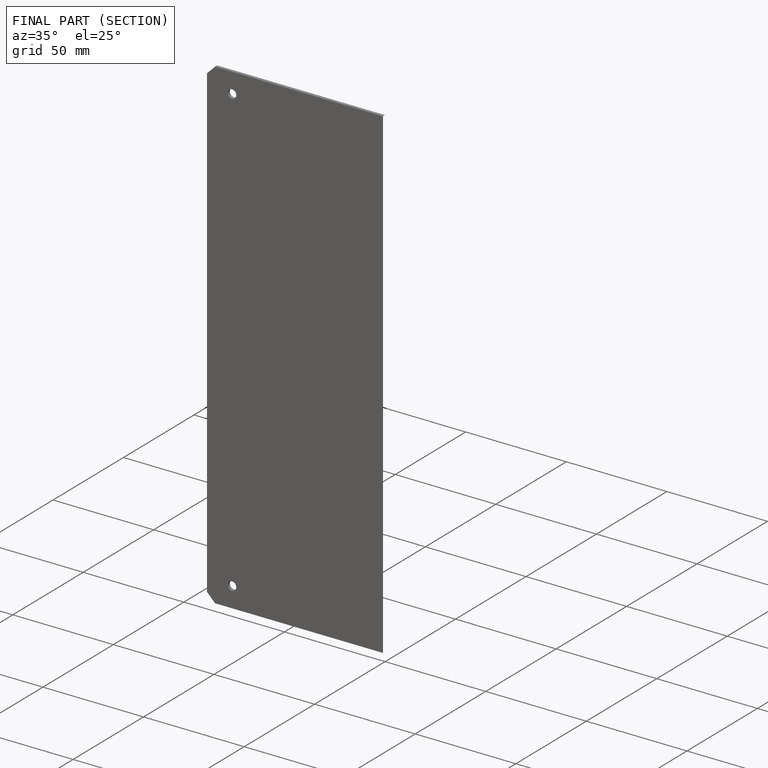
[diagram: finished part — half-section view (interior)]
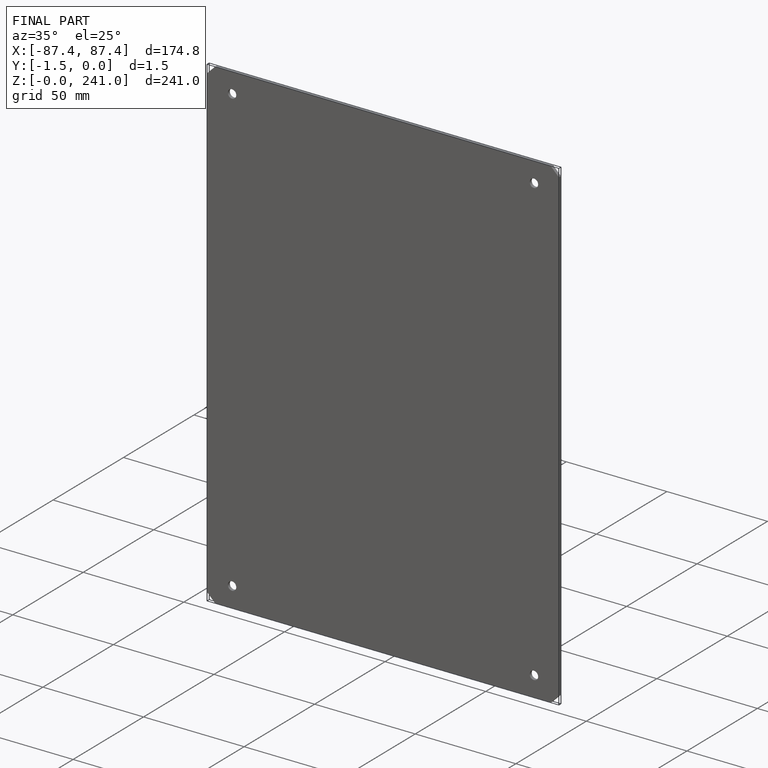
[diagram: finished part — iso view with bounding-box wireframe]
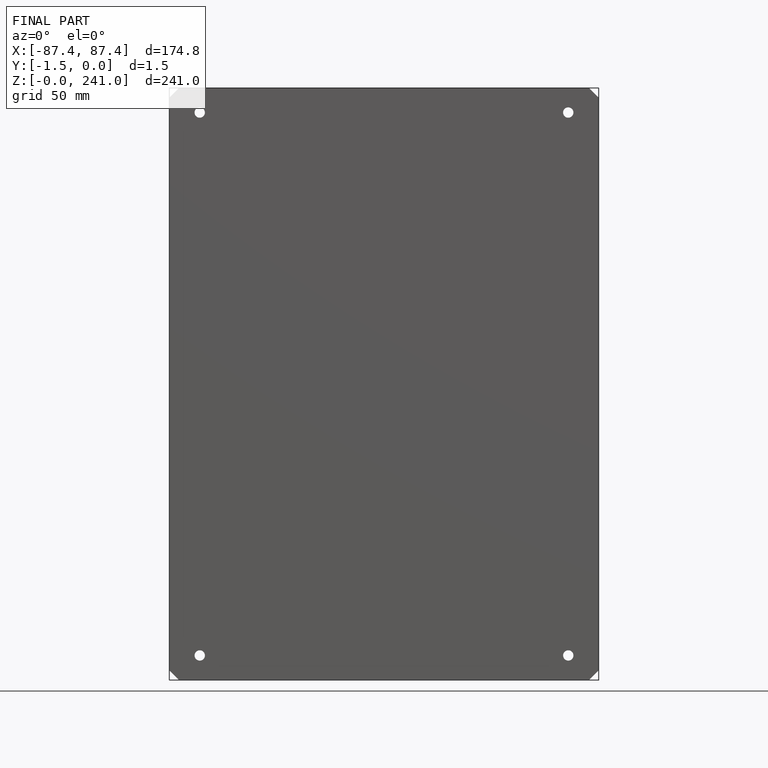
[diagram: finished part — front view with bounding-box wireframe]
